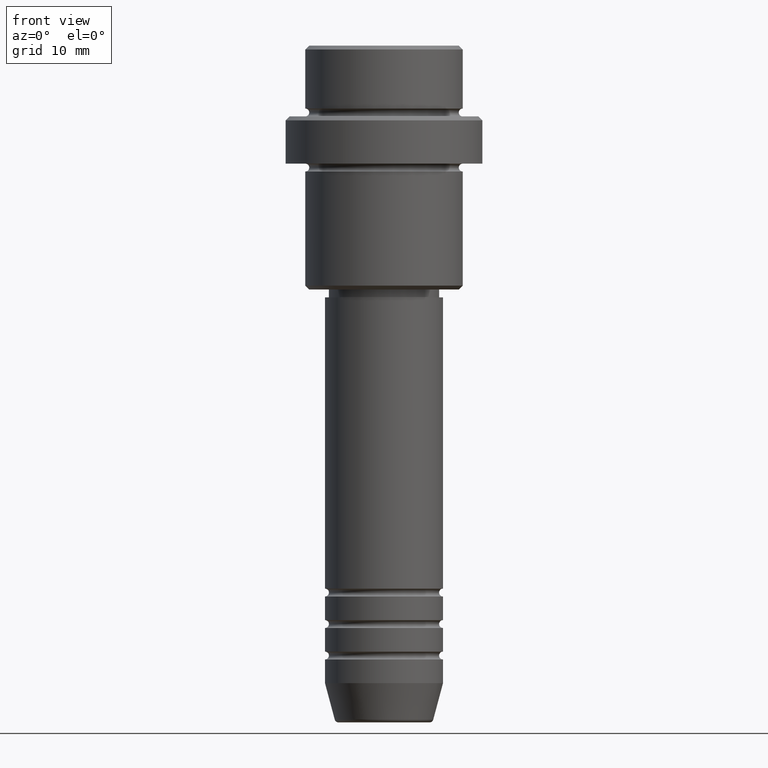
[diagram: clean part render]
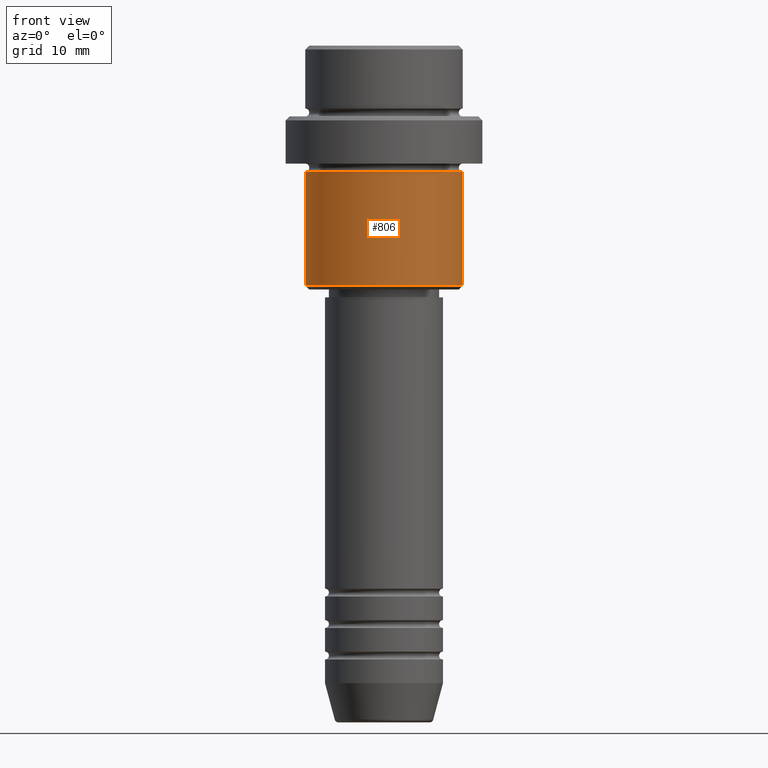
[diagram: same view with one face highlighted and labeled with its STEP entity id]
A machine part, front view. The second image highlights one B-rep face of the part: STEP entity #806.
In plain terms, the highlighted cylindrical surface (partial cylindrical patch) has radius 10 mm, axis along (-0, -0, 1).
Its self-contained STEP definition (entity closure, byte-faithful):
#61 = LINE ( 'NONE', #72, #546 ) ;
#72 = CARTESIAN_POINT ( 'NONE',  ( -10.00000000000000000, 1.224646799147353256E-15, 0.000000000000000000 ) ) ;
#105 = EDGE_LOOP ( 'NONE', ( #282, #532, #254, #734 ) ) ;
#180 = VERTEX_POINT ( 'NONE', #617 ) ;
#254 = ORIENTED_EDGE ( 'NONE', *, *, #993, .T. ) ;
#282 = ORIENTED_EDGE ( 'NONE', *, *, #1106, .F. ) ;
#297 = CARTESIAN_POINT ( 'NONE',  ( 0.000000000000000000, 0.000000000000000000, -16.00000000000000000 ) ) ;
#335 = CARTESIAN_POINT ( 'NONE',  ( 0.000000000000000000, 0.000000000000000000, 0.000000000000000000 ) ) ;
#437 = FACE_OUTER_BOUND ( 'NONE', #105, .T. ) ;
#473 = VERTEX_POINT ( 'NONE', #755 ) ;
#479 = LINE ( 'NONE', #1391, #1398 ) ;
#486 = DIRECTION ( 'NONE',  ( -0.000000000000000000, -0.000000000000000000, 1.000000000000000000 ) ) ;
#492 = CARTESIAN_POINT ( 'NONE',  ( 10.00000000000000000, 0.000000000000000000, -16.00000000000000000 ) ) ;
#494 = DIRECTION ( 'NONE',  ( -0.000000000000000000, -0.000000000000000000, 1.000000000000000000 ) ) ;
#517 = EDGE_CURVE ( 'NONE', #1127, #180, #541, .T. ) ;
#520 = DIRECTION ( 'NONE',  ( -0.000000000000000000, -0.000000000000000000, 1.000000000000000000 ) ) ;
#532 = ORIENTED_EDGE ( 'NONE', *, *, #517, .T. ) ;
#541 = CIRCLE ( 'NONE', #899, 10.00000000000000000 ) ;
#546 = VECTOR ( 'NONE', #1295, 1000.000000000000000 ) ;
#602 = DIRECTION ( 'NONE',  ( -1.000000000000000000, 0.000000000000000000, 0.000000000000000000 ) ) ;
#617 = CARTESIAN_POINT ( 'NONE',  ( 10.00000000000000000, 0.000000000000000000, -30.49999999999999289 ) ) ;
#639 = AXIS2_PLACEMENT_3D ( 'NONE', #297, #494, #1047 ) ;
#663 = CIRCLE ( 'NONE', #639, 10.00000000000000000 ) ;
#668 = DIRECTION ( 'NONE',  ( 1.000000000000000000, 0.000000000000000000, 0.000000000000000000 ) ) ;
#734 = ORIENTED_EDGE ( 'NONE', *, *, #1100, .F. ) ;
#755 = CARTESIAN_POINT ( 'NONE',  ( -10.00000000000000000, 1.224646799147353256E-15, -16.00000000000000000 ) ) ;
#782 = DIRECTION ( 'NONE',  ( -0.000000000000000000, -0.000000000000000000, 1.000000000000000000 ) ) ;
#806 = ADVANCED_FACE ( 'NONE', ( #437 ), #894, .T. ) ;
#865 = CARTESIAN_POINT ( 'NONE',  ( 0.000000000000000000, 0.000000000000000000, -30.49999999999999289 ) ) ;
#894 = CYLINDRICAL_SURFACE ( 'NONE', #1282, 10.00000000000000000 ) ;
#899 = AXIS2_PLACEMENT_3D ( 'NONE', #865, #520, #602 ) ;
#993 = EDGE_CURVE ( 'NONE', #180, #1401, #479, .T. ) ;
#1047 = DIRECTION ( 'NONE',  ( 1.000000000000000000, 0.000000000000000000, 0.000000000000000000 ) ) ;
#1100 = EDGE_CURVE ( 'NONE', #473, #1401, #663, .T. ) ;
#1106 = EDGE_CURVE ( 'NONE', #1127, #473, #61, .T. ) ;
#1127 = VERTEX_POINT ( 'NONE', #1336 ) ;
#1282 = AXIS2_PLACEMENT_3D ( 'NONE', #335, #782, #668 ) ;
#1295 = DIRECTION ( 'NONE',  ( -0.000000000000000000, -0.000000000000000000, 1.000000000000000000 ) ) ;
#1336 = CARTESIAN_POINT ( 'NONE',  ( -10.00000000000000000, 1.224646799147353256E-15, -30.49999999999999289 ) ) ;
#1391 = CARTESIAN_POINT ( 'NONE',  ( 10.00000000000000000, 0.000000000000000000, 0.000000000000000000 ) ) ;
#1398 = VECTOR ( 'NONE', #486, 1000.000000000000000 ) ;
#1401 = VERTEX_POINT ( 'NONE', #492 ) ;